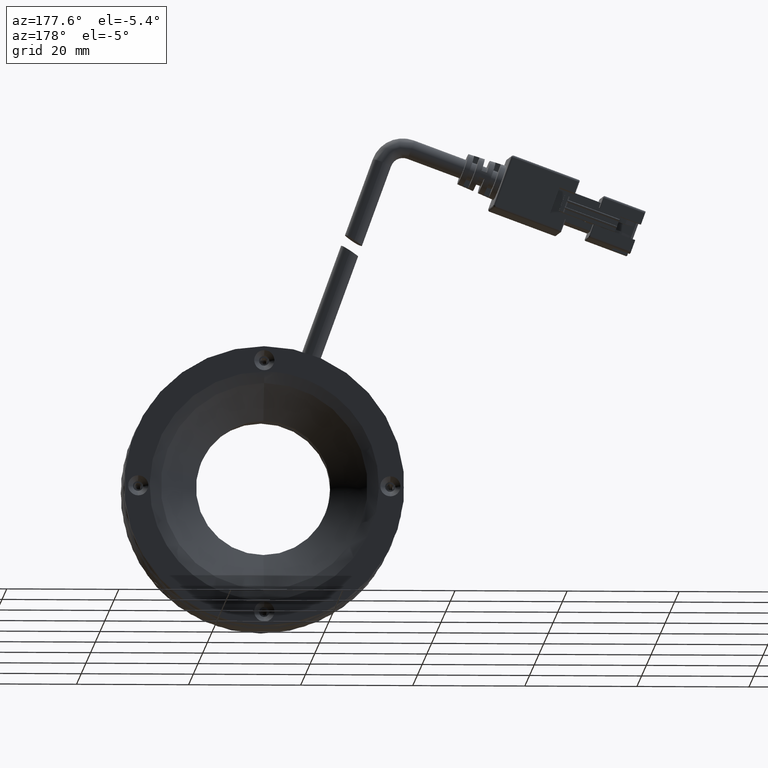
[diagram: clean part render]
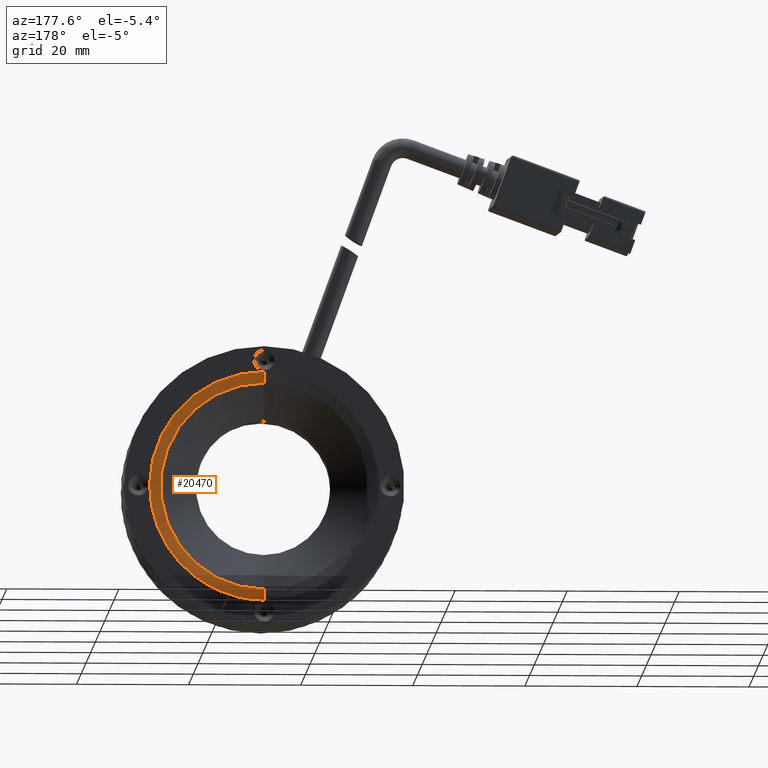
[diagram: same view with one face highlighted and labeled with its STEP entity id]
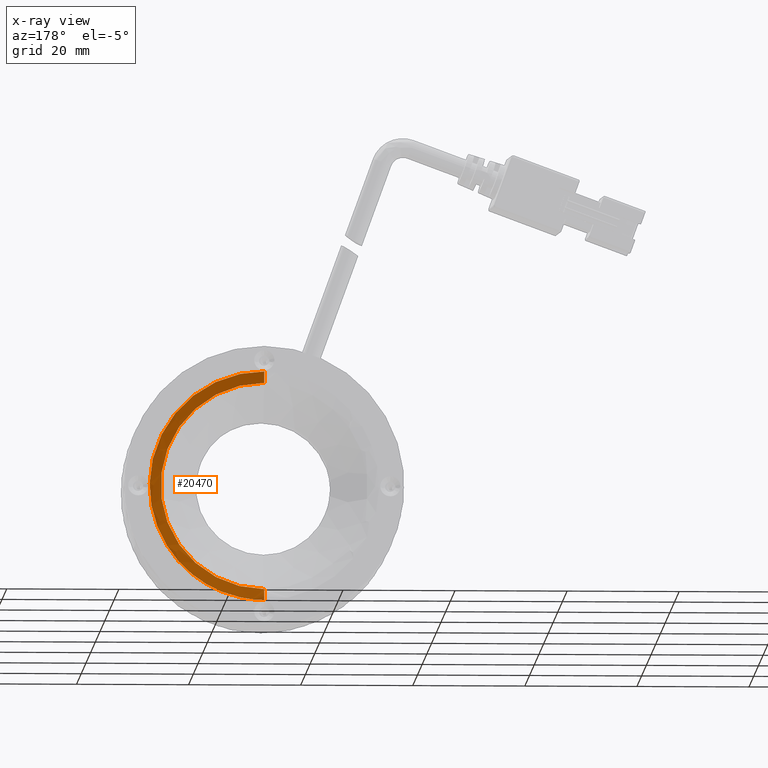
[diagram: x-ray of the same camera — body ghosted, the highlighted face saturated]
A machine part, auxiliary view. The second image highlights one B-rep face of the part: STEP entity #20470.
The next image is the same camera in x-ray: the body ghosted, the highlighted face saturated — about 0% of this face is hidden behind the body in this view.
In plain terms, the highlighted face is a freeform B-spline surface patch.
Its self-contained STEP definition (entity closure, byte-faithful):
#98 = CARTESIAN_POINT ( 'NONE',  ( -9.648541418031049600, 11.96623562781427800, 95.62971614960564200 ) ) ;
#1557 = EDGE_LOOP ( 'NONE', ( #59829, #17756, #20816, #49756 ) ) ;
#4087 = CIRCLE ( 'NONE', #57142, 4.000000000000003600 ) ;
#6191 = CARTESIAN_POINT ( 'NONE',  ( 28.50467936993704000, 11.96623562781427600, 57.47649536163753900 ) ) ;
#8393 =( BOUNDED_CURVE ( )  B_SPLINE_CURVE ( 3, ( #19143, #13271, #19388, #61897 ),
 .UNSPECIFIED., .F., .T. ) 
 B_SPLINE_CURVE_WITH_KNOTS ( ( 4, 4 ),
 ( 0.0000000000000000000, 1.000000000000000000 ),
 .UNSPECIFIED. ) 
 CURVE ( )  GEOMETRIC_REPRESENTATION_ITEM ( )  RATIONAL_B_SPLINE_CURVE ( ( 1.000000000000000000, 0.3333333333333333700, 0.3333333333333333700, 1.000000000000000000 ) ) 
 REPRESENTATION_ITEM ( '' )  );
#10605 = CARTESIAN_POINT ( 'NONE',  ( -9.648541418031049600, 11.61312220220840400, 95.01810575562159000 ) ) ;
#12343 = CARTESIAN_POINT ( 'NONE',  ( -9.648541418031049600, 12.14902058707066100, 96.31187890440985200 ) ) ;
#13271 = CARTESIAN_POINT ( 'NONE',  ( 31.28145858196899100, 12.14902058707066400, 97.01810575562161900 ) ) ;
#17756 = ORIENTED_EDGE ( 'NONE', *, *, #43675, .T. ) ;
#18458 = CARTESIAN_POINT ( 'NONE',  ( 29.86900487954550700, 12.14902058707066200, 56.79433260683330800 ) ) ;
#19143 = CARTESIAN_POINT ( 'NONE',  ( -9.648541418031049600, 12.14902058707065900, 97.01810575562161900 ) ) ;
#19388 = CARTESIAN_POINT ( 'NONE',  ( 31.28145858196899800, 12.14902058707066400, 56.08810575562156900 ) ) ;
#19418 = DIRECTION ( 'NONE',  ( 0.0000000000000000000, -1.000000000000000000, 0.0000000000000000000 ) ) ;
#19782 = VERTEX_POINT ( 'NONE', #10605 ) ;
#20470 = ADVANCED_FACE ( 'NONE', ( #75154 ), #48686, .T. ) ;
#20816 = ORIENTED_EDGE ( 'NONE', *, *, #73716, .T. ) ;
#22163 = CARTESIAN_POINT ( 'NONE',  ( -9.648541418031047800, 8.149020587070662500, 56.08810575562156200 ) ) ;
#24593 = CARTESIAN_POINT ( 'NONE',  ( -9.648541418031049600, 12.14902058707066200, 97.01810575562161900 ) ) ;
#25005 = AXIS2_PLACEMENT_3D ( 'NONE', #55829, #19418, #61924 ) ;
#27442 = CIRCLE ( 'NONE', #25005, 18.46499999999999600 ) ;
#28309 = DIRECTION ( 'NONE',  ( 0.0000000000000000000, 0.0000000000000000000, -1.000000000000000000 ) ) ;
#30427 = CARTESIAN_POINT ( 'NONE',  ( 27.28145858196893100, 11.61312220220840200, 95.01810575562159000 ) ) ;
#30691 = CARTESIAN_POINT ( 'NONE',  ( 31.28145858196900200, 12.14902058707066200, 56.08810575562156200 ) ) ;
#32519 = DIRECTION ( 'NONE',  ( 1.000000000000000000, 0.0000000000000000000, 0.0000000000000000000 ) ) ;
#35380 = CARTESIAN_POINT ( 'NONE',  ( -9.648541418031047800, 11.61312220220840400, 58.08810575562159100 ) ) ;
#36550 = CARTESIAN_POINT ( 'NONE',  ( -9.648541418031047800, 11.61312220220840200, 58.08810575562159100 ) ) ;
#42372 = AXIS2_PLACEMENT_3D ( 'NONE', #68896, #32519, #75011 ) ;
#42375 = CARTESIAN_POINT ( 'NONE',  ( -9.648541418031049600, 11.61312220220840200, 95.01810575562159000 ) ) ;
#42636 = CARTESIAN_POINT ( 'NONE',  ( 28.50467936993703700, 11.96623562781427600, 95.62971614960564200 ) ) ;
#43675 = EDGE_CURVE ( 'NONE', #56891, #19782, #27442, .T. ) ;
#45016 = VERTEX_POINT ( 'NONE', #77870 ) ;
#48104 = CIRCLE ( 'NONE', #42372, 4.000000000000003600 ) ;
#48686 =( BOUNDED_SURFACE ( )  B_SPLINE_SURFACE ( 3, 3, ( 
 ( #42375, #30427, #72892, #36550 ),
 ( #98, #42636, #6191, #48737 ),
 ( #12343, #54837, #18458, #60962 ),
 ( #24593, #67107, #30691, #73198 ) ),
 .UNSPECIFIED., .F., .F., .F. ) 
 B_SPLINE_SURFACE_WITH_KNOTS ( ( 4, 4 ),
 ( 4, 4 ),
 ( 0.0000000000000000000, 1.000000000000000000 ),
 ( 0.0000000000000000000, 1.000000000000000000 ),
 .UNSPECIFIED. ) 
 GEOMETRIC_REPRESENTATION_ITEM ( )  RATIONAL_B_SPLINE_SURFACE ( (
 ( 1.000000000000000000, 0.3333333333333334300, 0.3333333333333334300, 1.000000000000000000),
 ( 0.9772838841927115100, 0.3257612947309039300, 0.3257612947309039300, 0.9772838841927115100),
 ( 0.9772838841927115100, 0.3257612947309039300, 0.3257612947309039300, 0.9772838841927115100),
 ( 1.000000000000000000, 0.3333333333333334300, 0.3333333333333334300, 1.000000000000000000) ) ) 
 REPRESENTATION_ITEM ( '' )  SURFACE ( )  );
#48737 = CARTESIAN_POINT ( 'NONE',  ( -9.648541418031047800, 11.96623562781427800, 57.47649536163753900 ) ) ;
#49268 = VERTEX_POINT ( 'NONE', #74594 ) ;
#49756 = ORIENTED_EDGE ( 'NONE', *, *, #74283, .T. ) ;
#54837 = CARTESIAN_POINT ( 'NONE',  ( 29.86900487954550000, 12.14902058707066200, 96.31187890440986600 ) ) ;
#55829 = CARTESIAN_POINT ( 'NONE',  ( -9.648541418031049600, 11.61312220220840400, 76.55310575562158700 ) ) ;
#56891 = VERTEX_POINT ( 'NONE', #35380 ) ;
#57142 = AXIS2_PLACEMENT_3D ( 'NONE', #22163, #64693, #28309 ) ;
#59829 = ORIENTED_EDGE ( 'NONE', *, *, #69178, .F. ) ;
#60962 = CARTESIAN_POINT ( 'NONE',  ( -9.648541418031047800, 12.14902058707066100, 56.79433260683330100 ) ) ;
#61897 = CARTESIAN_POINT ( 'NONE',  ( -9.648541418031047800, 12.14902058707065900, 56.08810575562156200 ) ) ;
#61924 = DIRECTION ( 'NONE',  ( 0.0000000000000000000, 0.0000000000000000000, 1.000000000000000000 ) ) ;
#64693 = DIRECTION ( 'NONE',  ( -1.000000000000000000, 0.0000000000000000000, -1.224646799147353200E-016 ) ) ;
#67107 = CARTESIAN_POINT ( 'NONE',  ( 31.28145858196899100, 12.14902058707066200, 97.01810575562163300 ) ) ;
#68896 = CARTESIAN_POINT ( 'NONE',  ( -9.648541418031049600, 8.149020587070662500, 97.01810575562161900 ) ) ;
#69178 = EDGE_CURVE ( 'NONE', #56891, #49268, #4087, .T. ) ;
#72892 = CARTESIAN_POINT ( 'NONE',  ( 27.28145858196893800, 11.61312220220840200, 58.08810575562159800 ) ) ;
#73198 = CARTESIAN_POINT ( 'NONE',  ( -9.648541418031047800, 12.14902058707066200, 56.08810575562156200 ) ) ;
#73716 = EDGE_CURVE ( 'NONE', #19782, #45016, #48104, .T. ) ;
#74283 = EDGE_CURVE ( 'NONE', #45016, #49268, #8393, .T. ) ;
#74594 = CARTESIAN_POINT ( 'NONE',  ( -9.648541418031047800, 12.14902058707065900, 56.08810575562156200 ) ) ;
#75011 = DIRECTION ( 'NONE',  ( 0.0000000000000000000, 0.0000000000000000000, 1.000000000000000000 ) ) ;
#75154 = FACE_OUTER_BOUND ( 'NONE', #1557, .T. ) ;
#77870 = CARTESIAN_POINT ( 'NONE',  ( -9.648541418031049600, 12.14902058707065900, 97.01810575562161900 ) ) ;